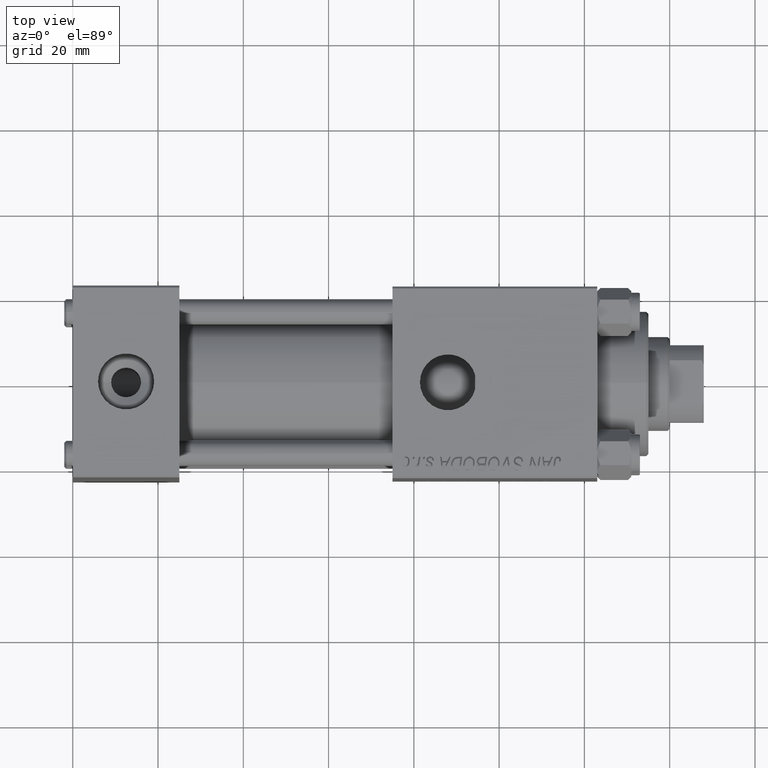
[diagram: clean part render]
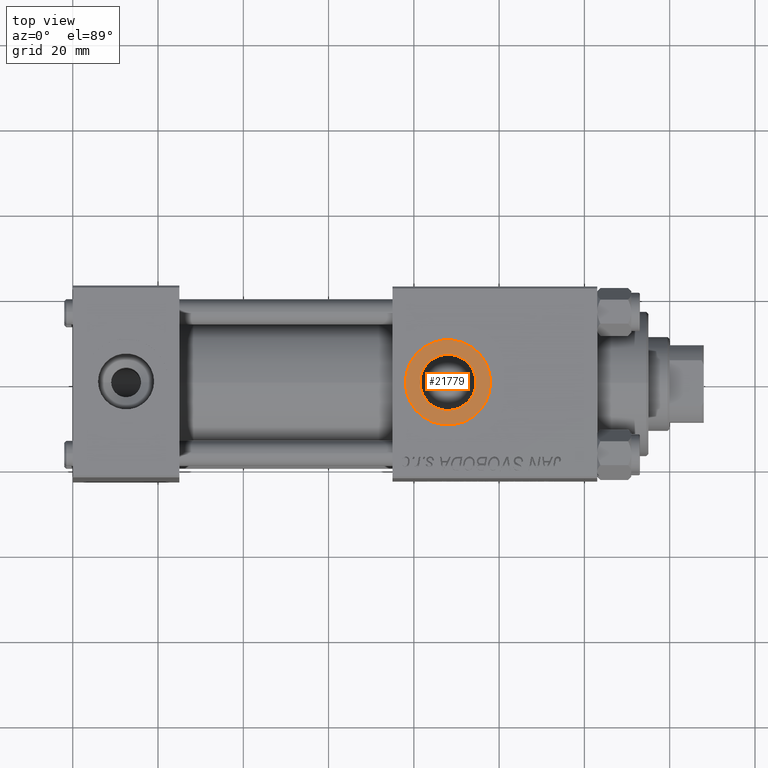
[diagram: same view with one face highlighted and labeled with its STEP entity id]
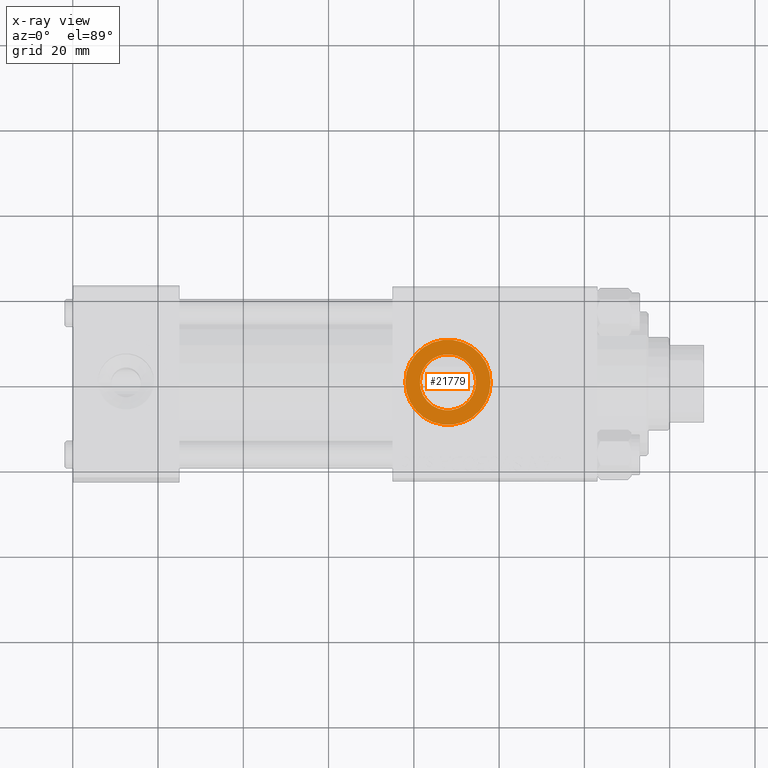
[diagram: x-ray of the same camera — body ghosted, the highlighted face saturated]
A machine part, top view. The second image highlights one B-rep face of the part: STEP entity #21779.
The next image is the same camera in x-ray: the body ghosted, the highlighted face saturated — about 0% of this face is hidden behind the body in this view.
In plain terms, the highlighted planar face has unit normal (0, 0, 1).
Its self-contained STEP definition (entity closure, byte-faithful):
#714 = EDGE_LOOP ( 'NONE', ( #47837, #38412 ) ) ;
#1402 = DIRECTION ( 'NONE',  ( 1.000000000000000000, 0.000000000000000000, -0.000000000000000000 ) ) ;
#3174 = EDGE_CURVE ( 'NONE', #3932, #4804, #13885, .T. ) ;
#3932 = VERTEX_POINT ( 'NONE', #42941 ) ;
#4804 = VERTEX_POINT ( 'NONE', #15173 ) ;
#5432 = FACE_OUTER_BOUND ( 'NONE', #714, .T. ) ;
#6610 = CARTESIAN_POINT ( 'NONE',  ( 88.00000000000001421, -5.204170427930420494E-15, 22.29999999999999716 ) ) ;
#7593 = AXIS2_PLACEMENT_3D ( 'NONE', #6610, #21530, #17978 ) ;
#9296 = VERTEX_POINT ( 'NONE', #17933 ) ;
#9373 = AXIS2_PLACEMENT_3D ( 'NONE', #47794, #32858, #28561 ) ;
#9477 = DIRECTION ( 'NONE',  ( 0.000000000000000000, 0.000000000000000000, 1.000000000000000000 ) ) ;
#11243 = DIRECTION ( 'NONE',  ( 0.000000000000000000, 0.000000000000000000, 1.000000000000000000 ) ) ;
#11740 = CARTESIAN_POINT ( 'NONE',  ( 88.00000000000001421, -5.204170427930420494E-15, 22.29999999999999716 ) ) ;
#12841 = AXIS2_PLACEMENT_3D ( 'NONE', #35065, #39364, #47454 ) ;
#13760 = FACE_BOUND ( 'NONE', #36857, .T. ) ;
#13885 = CIRCLE ( 'NONE', #14707, 6.580000000000002736 ) ;
#13997 = PLANE ( 'NONE',  #20837 ) ;
#14707 = AXIS2_PLACEMENT_3D ( 'NONE', #11740, #11243, #19067 ) ;
#15173 = CARTESIAN_POINT ( 'NONE',  ( 81.42000000000000171, -4.398352834091461452E-15, 22.29999999999999716 ) ) ;
#17933 = CARTESIAN_POINT ( 'NONE',  ( 98.00000000000001421, -5.204170427930420494E-15, 22.29999999999999716 ) ) ;
#17978 = DIRECTION ( 'NONE',  ( 1.000000000000000000, 0.000000000000000000, 0.000000000000000000 ) ) ;
#19067 = DIRECTION ( 'NONE',  ( 1.000000000000000000, 0.000000000000000000, 0.000000000000000000 ) ) ;
#20837 = AXIS2_PLACEMENT_3D ( 'NONE', #25367, #9477, #1402 ) ;
#21530 = DIRECTION ( 'NONE',  ( 0.000000000000000000, 0.000000000000000000, 1.000000000000000000 ) ) ;
#21779 = ADVANCED_FACE ( 'NONE', ( #13760, #5432 ), #13997, .T. ) ;
#23153 = EDGE_CURVE ( 'NONE', #25363, #9296, #45900, .T. ) ;
#25363 = VERTEX_POINT ( 'NONE', #43813 ) ;
#25367 = CARTESIAN_POINT ( 'NONE',  ( 88.00000000000001421, -5.204170427930420494E-15, 22.29999999999999716 ) ) ;
#28561 = DIRECTION ( 'NONE',  ( 1.000000000000000000, 0.000000000000000000, 0.000000000000000000 ) ) ;
#29529 = CIRCLE ( 'NONE', #9373, 10.00000000000000888 ) ;
#30970 = CIRCLE ( 'NONE', #7593, 6.580000000000002736 ) ;
#32858 = DIRECTION ( 'NONE',  ( 0.000000000000000000, 0.000000000000000000, 1.000000000000000000 ) ) ;
#32933 = ORIENTED_EDGE ( 'NONE', *, *, #3174, .F. ) ;
#33404 = EDGE_CURVE ( 'NONE', #4804, #3932, #30970, .T. ) ;
#35065 = CARTESIAN_POINT ( 'NONE',  ( 88.00000000000001421, -5.204170427930420494E-15, 22.29999999999999716 ) ) ;
#36857 = EDGE_LOOP ( 'NONE', ( #32933, #48339 ) ) ;
#37495 = EDGE_CURVE ( 'NONE', #9296, #25363, #29529, .T. ) ;
#38412 = ORIENTED_EDGE ( 'NONE', *, *, #23153, .T. ) ;
#39364 = DIRECTION ( 'NONE',  ( 0.000000000000000000, 0.000000000000000000, 1.000000000000000000 ) ) ;
#42941 = CARTESIAN_POINT ( 'NONE',  ( 94.58000000000001251, -5.204170427930420494E-15, 22.29999999999999716 ) ) ;
#43813 = CARTESIAN_POINT ( 'NONE',  ( 78.00000000000000000, -3.979523628783065857E-15, 22.29999999999999716 ) ) ;
#45900 = CIRCLE ( 'NONE', #12841, 10.00000000000000888 ) ;
#47454 = DIRECTION ( 'NONE',  ( 1.000000000000000000, 0.000000000000000000, 0.000000000000000000 ) ) ;
#47794 = CARTESIAN_POINT ( 'NONE',  ( 88.00000000000001421, -5.204170427930420494E-15, 22.29999999999999716 ) ) ;
#47837 = ORIENTED_EDGE ( 'NONE', *, *, #37495, .T. ) ;
#48339 = ORIENTED_EDGE ( 'NONE', *, *, #33404, .F. ) ;